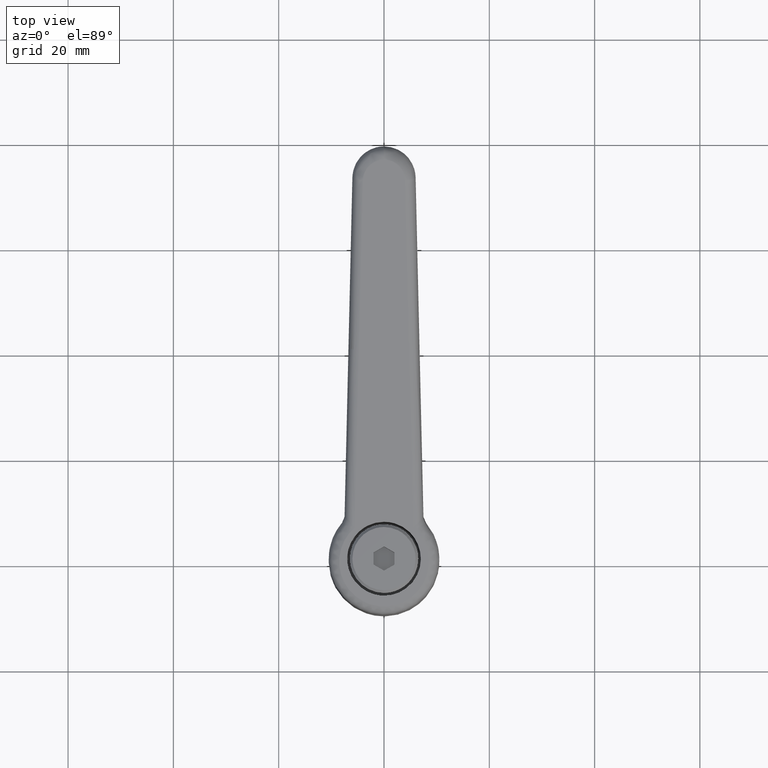
[diagram: clean part render]
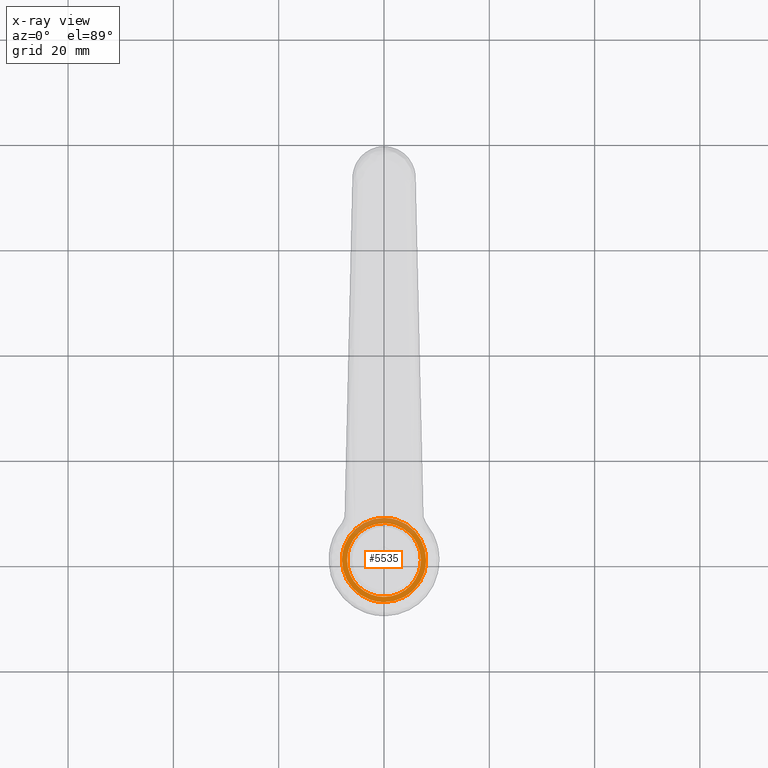
[diagram: x-ray — body ghosted, one internal face saturated and labeled with its STEP entity id]
A machine part, top view, then the same camera in x-ray: the body is ghosted and one INTERNAL B-rep face — a face not visible from any outside direction — is saturated and labeled: STEP entity #5535.
In plain terms, the highlighted face is a freeform B-spline surface patch.
Its self-contained STEP definition (entity closure, byte-faithful):
#1762=CARTESIAN_POINT('',(-8.0,0.0,12.000000000000220));
#1763=VERTEX_POINT('',#1762);
#1764=CARTESIAN_POINT('',(-5.579455565933691,-5.733207352606377,11.999999999999609));
#1765=VERTEX_POINT('',#1764);
#1766=CARTESIAN_POINT('',(-8.0,0.0,12.000000000000220));
#1767=CARTESIAN_POINT('',(-8.000027731731711,-0.432786008928074,12.000000000000179));
#1768=CARTESIAN_POINT('',(-7.926896242110979,-1.331647725959174,12.000000000000080));
#1769=CARTESIAN_POINT('',(-7.604862014877902,-2.594548783022264,11.999999999999950));
#1770=CARTESIAN_POINT('',(-7.070143371480210,-3.818219645690333,11.999999999999821));
#1771=CARTESIAN_POINT('',(-6.398442952488920,-4.856340066681137,11.999999999999700));
#1772=CARTESIAN_POINT('',(-5.841899846034064,-5.477813719201208,11.999999999999650));
#1773=CARTESIAN_POINT('',(-5.579455565933691,-5.733207352606377,11.999999999999609));
#1774=B_SPLINE_CURVE_WITH_KNOTS('',3,(#1766,#1767,#1768,#1769,#1770,#1771,#1772,#1773),.UNSPECIFIED.,.F.,.U.,(4,1,1,1,1,4),(0.000000020805771,1.298364194283169,2.696614071405953,3.895090207713503,5.293338206050088,6.391948873217176),.UNSPECIFIED.);
#1775=EDGE_CURVE('',#1763,#1765,#1774,.T.);
#1842=CARTESIAN_POINT('',(5.404722081737718,-5.898219072558753,12.000000000003681));
#1843=VERTEX_POINT('',#1842);
#1849=CARTESIAN_POINT('',(8.0,0.0,12.000000000000220));
#1850=VERTEX_POINT('',#1849);
#1851=CARTESIAN_POINT('',(5.404722081737718,-5.898219072558753,12.000000000003681));
#1852=CARTESIAN_POINT('',(5.710346865865792,-5.618191696690460,12.000000000003510));
#1853=CARTESIAN_POINT('',(6.301580396985595,-4.985166587075994,12.000000000003141));
#1854=CARTESIAN_POINT('',(7.110969013349257,-3.774909366313471,12.000000000002441));
#1855=CARTESIAN_POINT('',(7.806532050358358,-2.106982871085468,12.000000000001441));
#1856=CARTESIAN_POINT('',(8.000317049541899,-0.759978860267442,12.000000000000700));
#1857=CARTESIAN_POINT('',(8.0,0.0,12.000000000000220));
#1858=B_SPLINE_CURVE_WITH_KNOTS('',3,(#1851,#1852,#1853,#1854,#1855,#1856,#1857),.UNSPECIFIED.,.F.,.U.,(4,1,1,1,4),(0.000000019961227,1.243550088171947,2.590747473334830,4.352439000136460,6.632297702625273),.UNSPECIFIED.);
#1859=EDGE_CURVE('',#1843,#1850,#1858,.T.);
#1861=CARTESIAN_POINT('',(-0.000002260783051,7.999999999999680,12.000000000000220));
#1862=VERTEX_POINT('',#1861);
#1863=CARTESIAN_POINT('',(8.0,0.0,12.000000000000220));
#1864=CARTESIAN_POINT('',(8.000265952763254,0.719976798567160,12.000000000000290));
#1865=CARTESIAN_POINT('',(7.839825782704990,1.897928904099918,12.000000000000160));
#1866=CARTESIAN_POINT('',(7.324785174875767,3.283363959770083,12.000000000000270));
#1867=CARTESIAN_POINT('',(6.715338165016187,4.406964221276028,12.000000000000160));
#1868=CARTESIAN_POINT('',(5.938840886949250,5.427581086486112,12.000000000000320));
#1869=CARTESIAN_POINT('',(4.989650238528767,6.287784719139960,12.000000000000160));
#1870=CARTESIAN_POINT('',(4.012652800161312,6.949311543958238,12.000000000000311));
#1871=CARTESIAN_POINT('',(3.100815668881419,7.401282794990550,12.000000000000160));
#1872=CARTESIAN_POINT('',(1.734305897143737,7.862101227232282,12.000000000000270));
#1873=CARTESIAN_POINT('',(0.719977089166383,8.000261206147705,12.000000000000210));
#1874=CARTESIAN_POINT('',(-0.000002260783051,7.999999999999680,12.000000000000220));
#1875=B_SPLINE_CURVE_WITH_KNOTS('',3,(#1863,#1864,#1865,#1866,#1867,#1868,#1869,#1870,#1871,#1872,#1873,#1874),.UNSPECIFIED.,.F.,.U.,(4,1,1,1,1,1,1,1,1,4),(0.000000072709657,2.159849828394473,3.534318960357766,4.417899924911252,5.988736856939362,7.363134208587723,8.246718430304689,9.523014865460517,10.406603923461880,12.566450737225161),.UNSPECIFIED.);
#1876=EDGE_CURVE('',#1850,#1862,#1875,.T.);
#1878=CARTESIAN_POINT('',(-0.000002260783051,7.999999999999680,12.000000000000220));
#1879=CARTESIAN_POINT('',(-0.589057430744009,8.000103122542159,12.000000000000229));
#1880=CARTESIAN_POINT('',(-1.734386763345091,7.872929744895418,12.000000000000201));
#1881=CARTESIAN_POINT('',(-3.199791083258274,7.378854053127598,12.000000000000210));
#1882=CARTESIAN_POINT('',(-4.550916357480083,6.635181194793479,12.000000000000259));
#1883=CARTESIAN_POINT('',(-5.670787662095581,5.716202042936146,12.000000000000140));
#1884=CARTESIAN_POINT('',(-6.608385058375816,4.573563699834652,12.000000000000361));
#1885=CARTESIAN_POINT('',(-7.344507050479137,3.292693183142676,12.000000000000060));
#1886=CARTESIAN_POINT('',(-7.869340520093086,1.767124131164072,12.000000000000350));
#1887=CARTESIAN_POINT('',(-8.000086913555110,0.589052233038184,12.000000000000130));
#1888=CARTESIAN_POINT('',(-8.0,0.0,12.000000000000220));
#1889=B_SPLINE_CURVE_WITH_KNOTS('',3,(#1878,#1879,#1880,#1881,#1882,#1883,#1884,#1885,#1886,#1887,#1888),.UNSPECIFIED.,.F.,.U.,(4,1,1,1,1,1,1,1,4),(0.000000073494544,1.767150820161952,3.436139983482672,4.614257936980403,6.381378566020545,7.755831599398813,9.032130869328727,10.799293665327310,12.566448188779789),.UNSPECIFIED.);
#1890=EDGE_CURVE('',#1862,#1763,#1889,.T.);
#1909=CARTESIAN_POINT('',(0.000002260782890,-7.999999999999680,12.000000000000220));
#1910=VERTEX_POINT('',#1909);
#1911=CARTESIAN_POINT('',(-5.579455565933691,-5.733207352606377,11.999999999999609));
#1912=CARTESIAN_POINT('',(-5.187716993206646,-6.114556267234926,11.999999999999600));
#1913=CARTESIAN_POINT('',(-4.452385902826608,-6.696111773239875,11.999999999999840));
#1914=CARTESIAN_POINT('',(-3.288741541305939,-7.323415479635832,11.999999999999780));
#1915=CARTESIAN_POINT('',(-1.865066222402066,-7.842717893193277,12.000000000000171));
#1916=CARTESIAN_POINT('',(-0.739689410452831,-8.000307993849406,11.999999999999980));
#1917=CARTESIAN_POINT('',(0.000002260782890,-7.999999999999680,12.000000000000220));
#1918=B_SPLINE_CURVE_WITH_KNOTS('',3,(#1911,#1912,#1913,#1914,#1915,#1916,#1917),.UNSPECIFIED.,.F.,.U.,(4,1,1,1,4),(0.000000021310710,1.640102854607182,2.797838433383124,3.955532584160933,6.174502477589517),.UNSPECIFIED.);
#1919=EDGE_CURVE('',#1765,#1910,#1918,.T.);
#1921=CARTESIAN_POINT('',(0.000002260782890,-7.999999999999680,12.000000000000220));
#1922=CARTESIAN_POINT('',(0.432697398318752,-8.000019298753267,12.000000000000499));
#1923=CARTESIAN_POINT('',(1.390813878934642,-7.922110171578548,12.000000000001100));
#1924=CARTESIAN_POINT('',(2.891199253232296,-7.521830925413429,12.000000000002080));
#1925=CARTESIAN_POINT('',(4.277750796517029,-6.818502802227062,12.000000000002959));
#1926=CARTESIAN_POINT('',(5.085713341485589,-6.190550184390378,12.000000000003491));
#1927=CARTESIAN_POINT('',(5.404722081737718,-5.898219072558753,12.000000000003681));
#1928=B_SPLINE_CURVE_WITH_KNOTS('',3,(#1921,#1922,#1923,#1924,#1925,#1926,#1927),.UNSPECIFIED.,.F.,.U.,(4,1,1,1,4),(0.000000020831123,1.298094798626285,2.874367269856921,4.636055893864174,5.934150671661554),.UNSPECIFIED.);
#1929=EDGE_CURVE('',#1910,#1843,#1928,.T.);
#1984=CARTESIAN_POINT('',(0.000001188988436,-6.999999999999899,12.000000000000220));
#1985=VERTEX_POINT('',#1984);
#1986=CARTESIAN_POINT('',(5.016557032961112,-4.882024139122084,12.000000000000220));
#1987=VERTEX_POINT('',#1986);
#1988=CARTESIAN_POINT('',(0.000001188988436,-6.999999999999899,12.000000000000220));
#1989=CARTESIAN_POINT('',(0.524345707652747,-7.000100399649767,12.000000000000250));
#1990=CARTESIAN_POINT('',(1.543843496996704,-6.884910383391655,12.000000000000171));
#1991=CARTESIAN_POINT('',(2.818296506407880,-6.447218587339040,12.000000000000210));
#1992=CARTESIAN_POINT('',(3.993365228512746,-5.796630640203945,12.000000000000270));
#1993=CARTESIAN_POINT('',(4.650937697931331,-5.257874215640447,12.000000000000201));
#1994=CARTESIAN_POINT('',(5.016557032961112,-4.882024139122084,12.000000000000220));
#1995=B_SPLINE_CURVE_WITH_KNOTS('',3,(#1988,#1989,#1990,#1991,#1992,#1993,#1994),.UNSPECIFIED.,.F.,.U.,(4,1,1,1,4),(0.000000026349125,1.573019189074598,3.058630559408360,4.019935274701098,5.592954437426920),.UNSPECIFIED.);
#1996=EDGE_CURVE('',#1985,#1987,#1995,.T.);
#1998=CARTESIAN_POINT('',(-7.0,0.0,12.000000000000220));
#1999=VERTEX_POINT('',#1998);
#2000=CARTESIAN_POINT('',(-7.0,0.0,12.000000000000220));
#2001=CARTESIAN_POINT('',(-7.000154531816519,-0.572696310281988,12.000000000000201));
#2002=CARTESIAN_POINT('',(-6.865701460703717,-1.660727825676672,12.000000000000259));
#2003=CARTESIAN_POINT('',(-6.323721221309754,-3.118973262623038,12.000000000000220));
#2004=CARTESIAN_POINT('',(-5.569381169171949,-4.310073783447814,12.000000000000229));
#2005=CARTESIAN_POINT('',(-4.643488454226321,-5.294618120992794,12.000000000000210));
#2006=CARTESIAN_POINT('',(-3.710723102315902,-5.968792167689481,12.000000000000201));
#2007=CARTESIAN_POINT('',(-2.740319888374056,-6.464702108528319,12.000000000000259));
#2008=CARTESIAN_POINT('',(-1.574802569855224,-6.873734366506737,12.000000000000110));
#2009=CARTESIAN_POINT('',(-0.601335952375125,-7.000194097820684,12.000000000000311));
#2010=CARTESIAN_POINT('',(0.000001188988436,-6.999999999999899,12.000000000000220));
#2011=B_SPLINE_CURVE_WITH_KNOTS('',3,(#2000,#2001,#2002,#2003,#2004,#2005,#2006,#2007,#2008,#2009,#2010),.UNSPECIFIED.,.F.,.U.,(4,1,1,1,1,1,1,1,4),(0.000000087010584,1.718053744110629,3.264340321593054,4.638789824404879,5.927337134992045,7.301779774068071,8.074923354539823,9.191686195143891,10.995643950266549),.UNSPECIFIED.);
#2012=EDGE_CURVE('',#1999,#1985,#2011,.T.);
#2014=CARTESIAN_POINT('',(-0.000001188988454,6.999999999999900,12.000000000000220));
#2015=VERTEX_POINT('',#2014);
#2016=CARTESIAN_POINT('',(-0.000001188988454,6.999999999999900,12.000000000000220));
#2017=CARTESIAN_POINT('',(-0.372243553942594,7.000017267630095,12.000000000000229));
#2018=CARTESIAN_POINT('',(-1.202637684206839,6.933637542768786,12.000000000000229));
#2019=CARTESIAN_POINT('',(-2.565976597762307,6.574410816409032,12.000000000000210));
#2020=CARTESIAN_POINT('',(-3.795207289930888,5.936663944833641,12.000000000000240));
#2021=CARTESIAN_POINT('',(-4.848706066072267,5.093311575969817,12.000000000000179));
#2022=CARTESIAN_POINT('',(-5.731087648644290,4.107851923580530,12.000000000000250));
#2023=CARTESIAN_POINT('',(-6.363061224987330,3.008030082873947,12.000000000000220));
#2024=CARTESIAN_POINT('',(-6.865571850097271,1.603380468139147,12.000000000000220));
#2025=CARTESIAN_POINT('',(-7.000302770862152,0.658634460375234,12.000000000000229));
#2026=CARTESIAN_POINT('',(-7.0,0.0,12.000000000000220));
#2027=B_SPLINE_CURVE_WITH_KNOTS('',3,(#2016,#2017,#2018,#2019,#2020,#2021,#2022,#2023,#2024,#2025,#2026),.UNSPECIFIED.,.F.,.U.,(4,1,1,1,1,1,1,1,4),(0.000000087425486,1.116738047035613,2.491196643854353,4.209276750928797,5.240146805609646,6.528636046409180,8.160827764644495,9.019865592206660,10.995642609991039),.UNSPECIFIED.);
#2028=EDGE_CURVE('',#2015,#1999,#2027,.T.);
#2030=CARTESIAN_POINT('',(5.160941096500178,4.729131300020281,12.000000000000220));
#2031=VERTEX_POINT('',#2030);
#2032=CARTESIAN_POINT('',(5.160941096500178,4.729131300020281,12.000000000000220));
#2033=CARTESIAN_POINT('',(4.813868762784884,5.108035819744735,12.000000000000281));
#2034=CARTESIAN_POINT('',(4.104397043471604,5.728732402501654,12.000000000000140));
#2035=CARTESIAN_POINT('',(3.023392227137886,6.344993221106664,12.000000000000210));
#2036=CARTESIAN_POINT('',(1.692442345997409,6.850135034301746,12.000000000000300));
#2037=CARTESIAN_POINT('',(0.695230899601590,7.000347974082649,12.000000000000140));
#2038=CARTESIAN_POINT('',(-0.000001188988454,6.999999999999900,12.000000000000220));
#2039=B_SPLINE_CURVE_WITH_KNOTS('',3,(#2032,#2033,#2034,#2035,#2036,#2037,#2038),.UNSPECIFIED.,.F.,.U.,(4,1,1,1,4),(0.000000026564961,1.541491985290737,2.810967723129423,3.717705506675188,5.803261336394769),.UNSPECIFIED.);
#2040=EDGE_CURVE('',#2031,#2015,#2039,.T.);
#2105=CARTESIAN_POINT('',(7.0,0.0,12.000000000000220));
#2106=VERTEX_POINT('',#2105);
#2107=CARTESIAN_POINT('',(5.016557032961112,-4.882024139122084,12.000000000000220));
#2108=CARTESIAN_POINT('',(5.369878722461502,-4.519099144535458,12.000000000000250));
#2109=CARTESIAN_POINT('',(5.875134712006344,-3.872197888561947,12.000000000000220));
#2110=CARTESIAN_POINT('',(6.483872342287078,-2.726641769451567,12.000000000000250));
#2111=CARTESIAN_POINT('',(6.892641118805631,-1.491326748538296,12.000000000000160));
#2112=CARTESIAN_POINT('',(7.000087577887024,-0.506506101090677,12.000000000000250));
#2113=CARTESIAN_POINT('',(7.0,0.0,12.000000000000220));
#2114=B_SPLINE_CURVE_WITH_KNOTS('',3,(#2107,#2108,#2109,#2110,#2111,#2112,#2113),.UNSPECIFIED.,.F.,.U.,(4,1,1,1,4),(0.000000022187803,1.519507000929850,2.448108013444898,3.883181315911817,5.402687948944153),.UNSPECIFIED.);
#2115=EDGE_CURVE('',#1987,#2106,#2114,.T.);
#2147=CARTESIAN_POINT('',(7.0,0.0,12.000000000000220));
#2148=CARTESIAN_POINT('',(7.000234895649765,0.649074170627052,12.000000000000201));
#2149=CARTESIAN_POINT('',(6.848406257040023,1.730658554088973,12.000000000000240));
#2150=CARTESIAN_POINT('',(6.218407248991903,3.350742494043496,12.000000000000210));
#2151=CARTESIAN_POINT('',(5.599620686864346,4.250746397441583,12.000000000000240));
#2152=CARTESIAN_POINT('',(5.160941096500178,4.729131300020281,12.000000000000220));
#2153=B_SPLINE_CURVE_WITH_KNOTS('',3,(#2147,#2148,#2149,#2150,#2151,#2152),.UNSPECIFIED.,.F.,.U.,(4,1,1,4),(0.000000021364853,1.947145220272111,3.245239227818476,5.192383538827709),.UNSPECIFIED.);
#2154=EDGE_CURVE('',#2106,#2031,#2153,.T.);
#5514=CARTESIAN_POINT('',(-8.799199968988896,8.799199968988544,12.000000000000201));
#5515=CARTESIAN_POINT('',(8.799200398142338,8.799199968988544,12.000000000000201));
#5516=CARTESIAN_POINT('',(-8.799199968988896,-8.799200398141986,12.000000000000201));
#5517=CARTESIAN_POINT('',(8.799200398142338,-8.799200398141986,12.000000000000201));
#5518=B_SPLINE_SURFACE_WITH_KNOTS('',1,1,((#5514,#5516),(#5515,#5517)),.UNSPECIFIED.,.F.,.F.,.U.,(2,2),(2,2),(0.0,17.598400367131230),(0.0,17.598400367130530),.UNSPECIFIED.);
#5519=ORIENTED_EDGE('',*,*,#1890,.F.);
#5520=ORIENTED_EDGE('',*,*,#1876,.F.);
#5521=ORIENTED_EDGE('',*,*,#1859,.F.);
#5522=ORIENTED_EDGE('',*,*,#1929,.F.);
#5523=ORIENTED_EDGE('',*,*,#1919,.F.);
#5524=ORIENTED_EDGE('',*,*,#1775,.F.);
#5525=EDGE_LOOP('',(#5519,#5520,#5521,#5522,#5523,#5524));
#5526=FACE_OUTER_BOUND('',#5525,.T.);
#5527=ORIENTED_EDGE('',*,*,#2012,.T.);
#5528=ORIENTED_EDGE('',*,*,#1996,.T.);
#5529=ORIENTED_EDGE('',*,*,#2115,.T.);
#5530=ORIENTED_EDGE('',*,*,#2154,.T.);
#5531=ORIENTED_EDGE('',*,*,#2040,.T.);
#5532=ORIENTED_EDGE('',*,*,#2028,.T.);
#5533=EDGE_LOOP('',(#5527,#5528,#5529,#5530,#5531,#5532));
#5534=FACE_BOUND('',#5533,.T.);
#5535=ADVANCED_FACE('',(#5526,#5534),#5518,.T.);